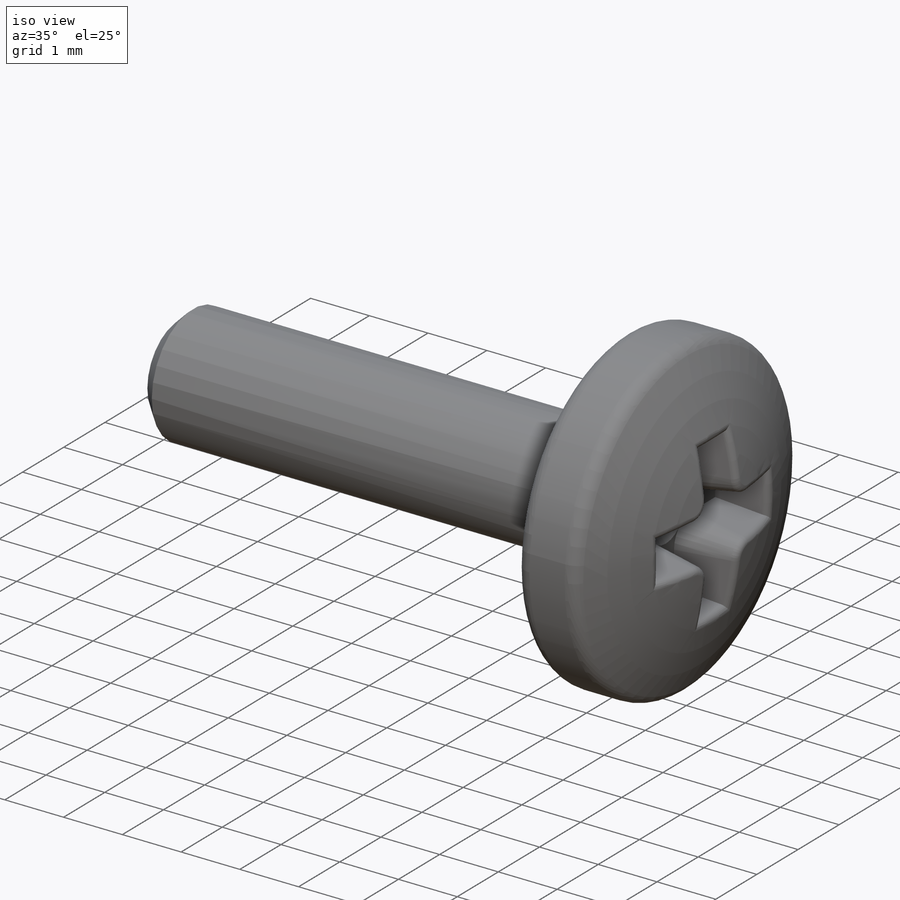
[diagram: iso view]
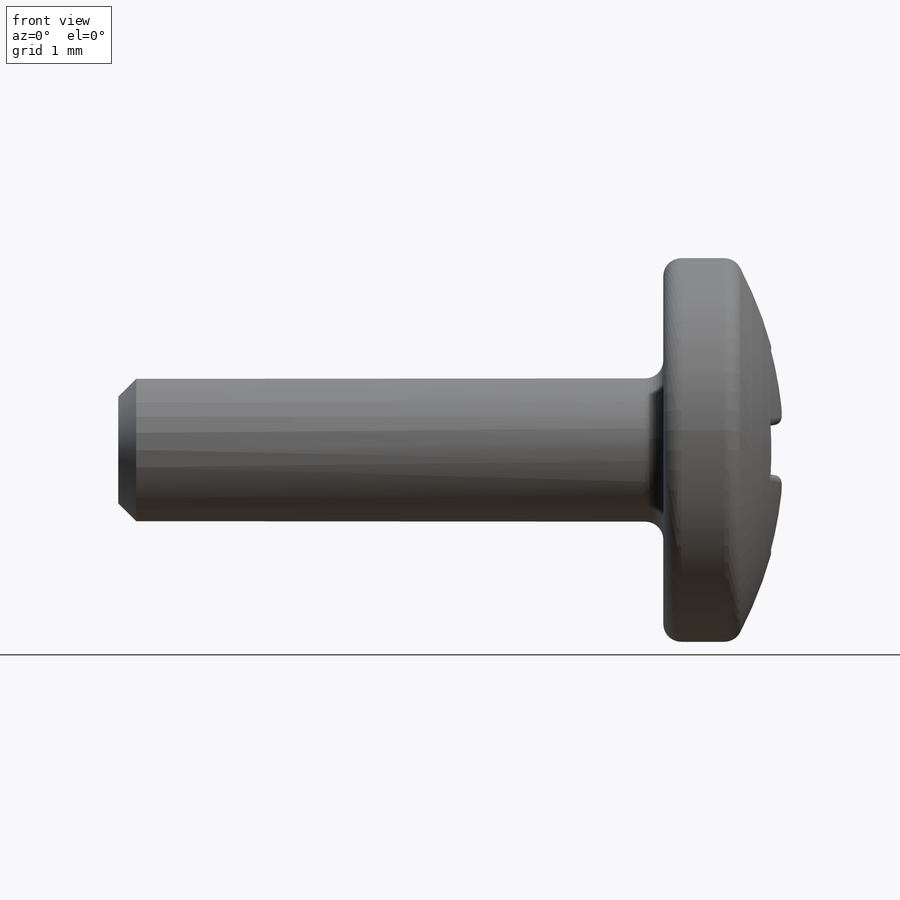
[diagram: front view]
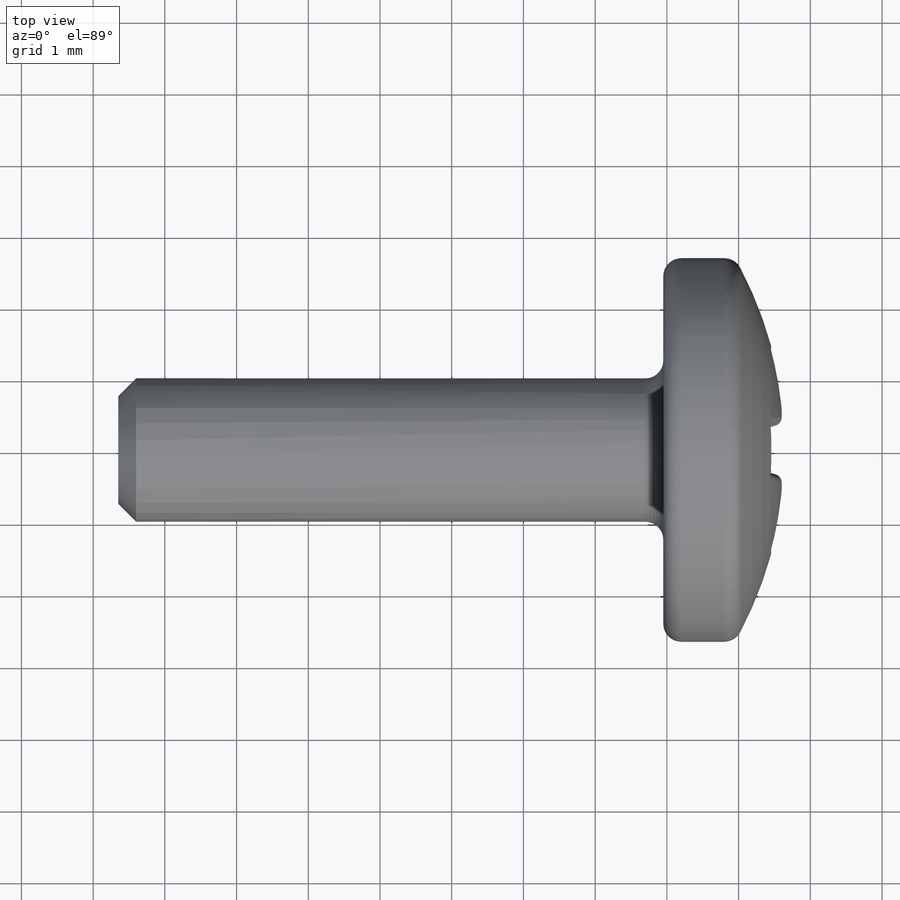
[diagram: top view]
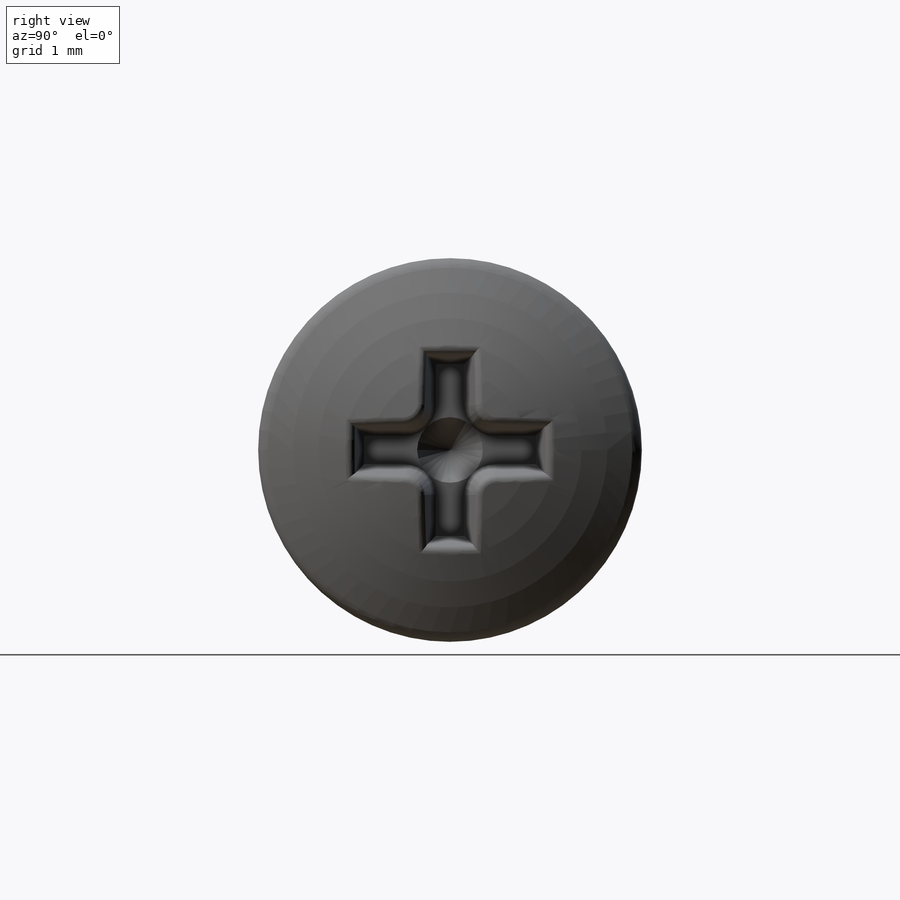
[diagram: right view]
SOLIDWORKS PART (.sldprt)
format: sldprt  version: not decoded by parser v0  size: 305,664 bytes
history: native  units: mm
features: sketch x3, cut_extrude x2, material x1, revolve x1, plane x1, chamfer x1, fillet x1 (+16 scaffold rows collapsed)
feature tree (26):
  scaffold x16  (default folders/planes/origin — collapsed)
  material  "Plain Carbon Steel"
  sketch  "Sketch1"  dims[D6=0.25mm D1=9.3mm D2=7.6mm D3=2.675mm D4=1.0mm D5=1.0mm D9=0.25mm D7=4.65mm]
  revolve  "Revolve1"  Angle=360deg
  plane  "Plane1"  Offset=4.65mm
  sketch  "Sketch2"  dims[D5=0.25mm D1=2.75mm D2=2.75mm D3=0.75mm D4=0.75mm]
  cut_extrude  "Extrude1"  Depth=1mm
  sketch  "Sketch3"
  cut_extrude  "Extrude2"  Depth=0.457556mm
  chamfer  "Chamfer1"  Distance=0.457556mm Angle=45deg
  fillet  "Fillet1"  Radius=0.1mm
decode coverage: 7 of 8 modeling features carry decoded parameters
note: suppression state not decoded; provenance and decode notes live in map.json
